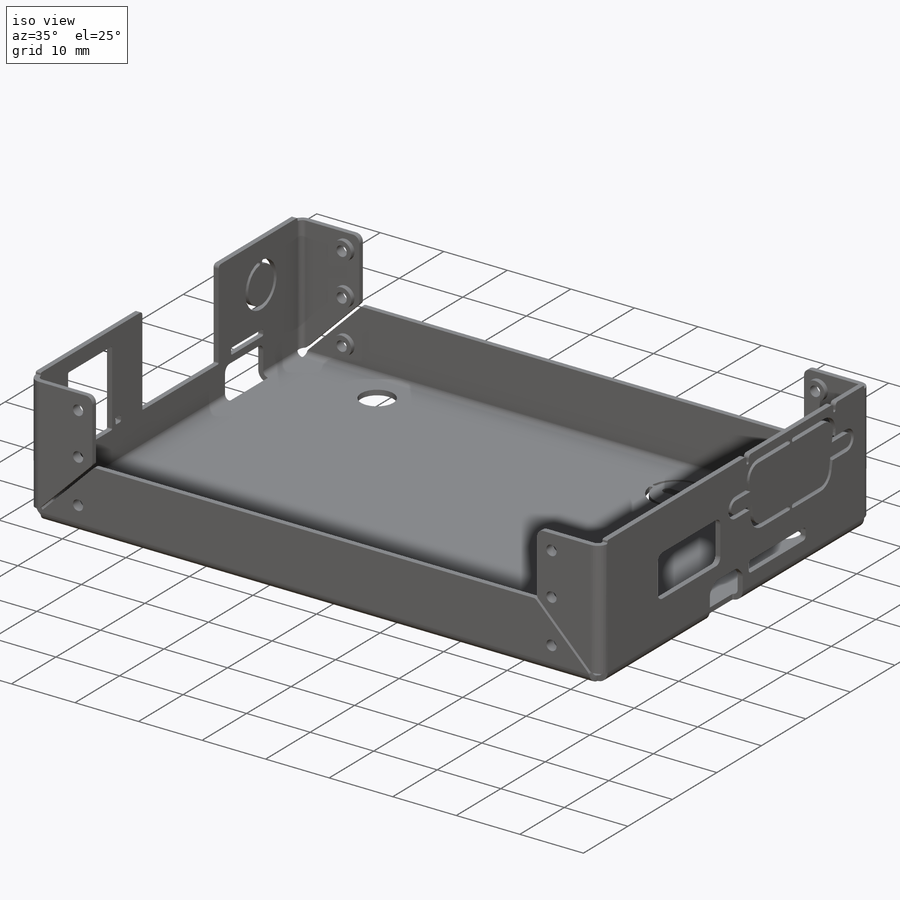
[diagram: iso view]
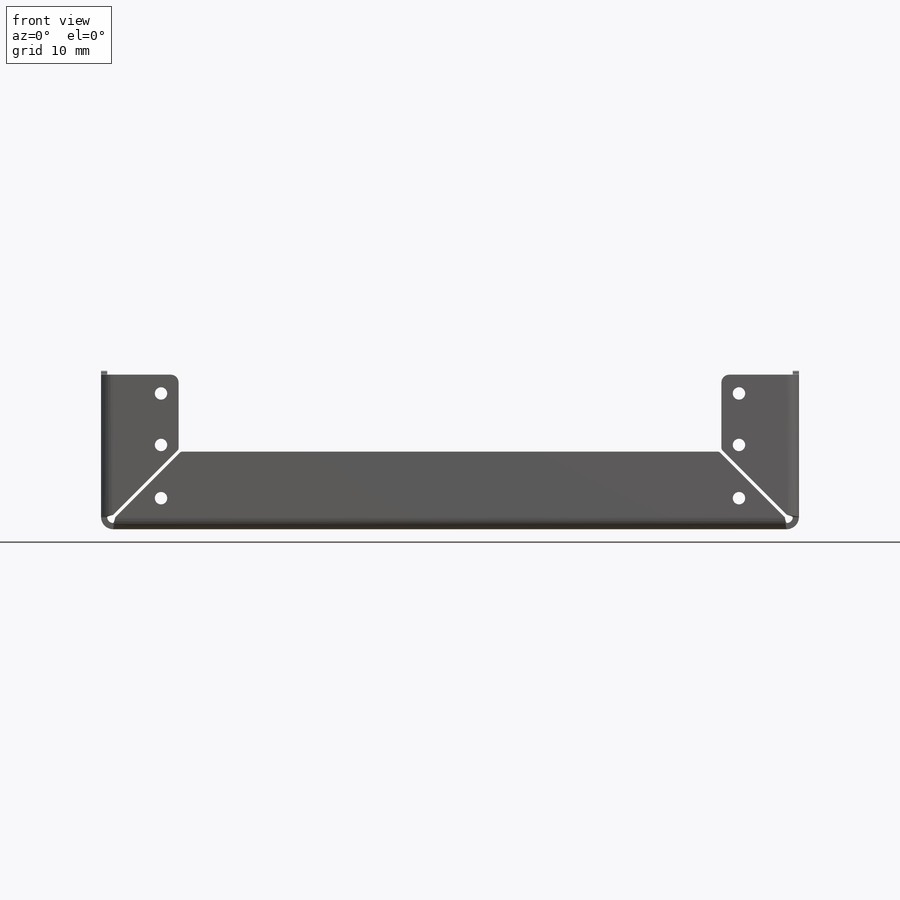
[diagram: front view]
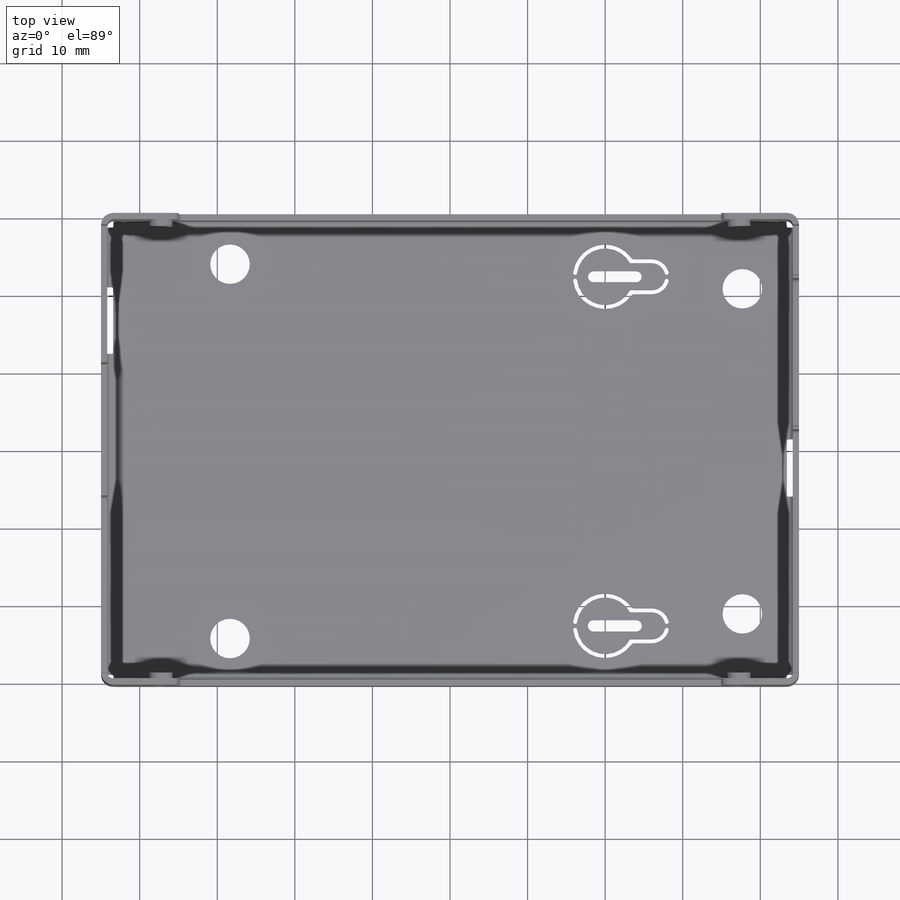
[diagram: top view]
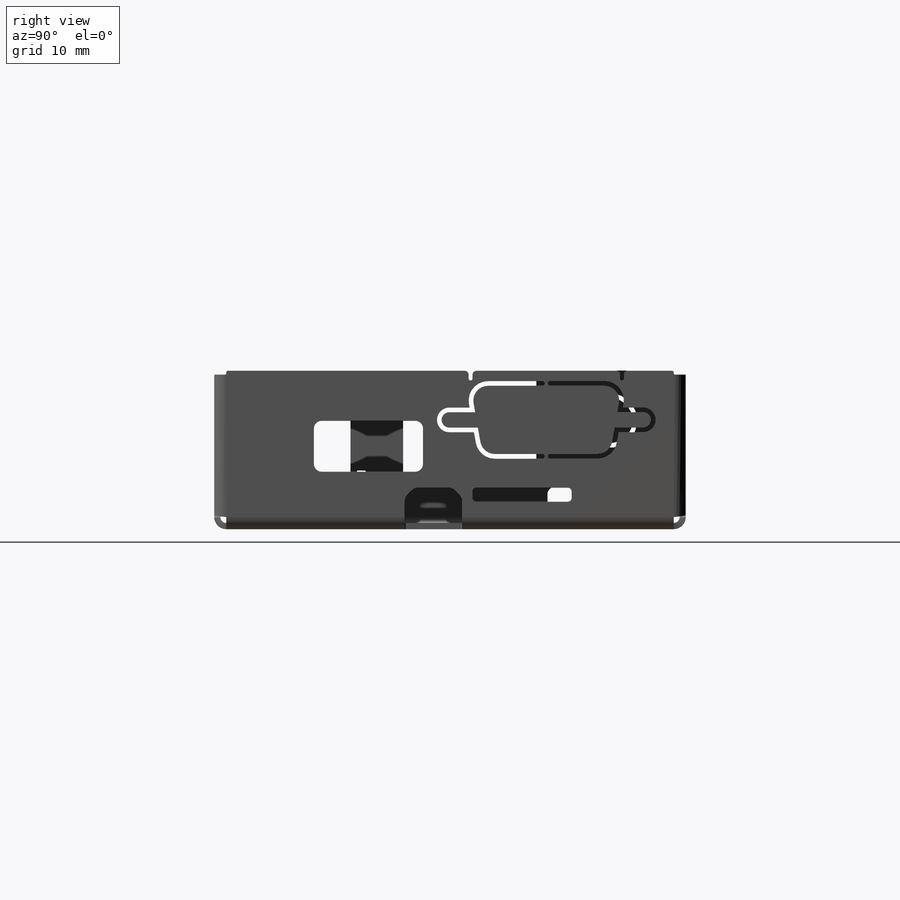
[diagram: right view]
SOLIDWORKS PART (.sldprt)
format: sldprt  version: not decoded by parser v0  size: 2,024,960 bytes
history: native  units: mm
features: sketch x68, sheet_metal_op x30, hole x22, fillet x11, cut_extrude x8, extrude x3, material x1 + 122 further entries (+13 scaffold rows collapsed; 22 parser-record rows omitted)
feature tree (300):
  scaffold x13  (default folders/planes/origin — collapsed)
  material  "Material <not specified>"
  sketch  "Sketch1"  dims[c1.D1=60.79mm c1.D2=89.97mm c2.D1=~0.75946mm c2.D2=0.48 c2.D3=0.0mm c2.D6=500.0mm]
  sheet_metal_op  "Base-Flange1"
  sketch  "Sketch14"
  sketch  "Sketch15"  dims[D1=~0.75946mm D4=90.0deg D5=1.0 D8=0.4mm D9=0.4mm]
  sheet_metal_op  "EdgeBend2"  Edge-Flange2=0
  sketch  "Sketch32"  dims[D1=10.0mm]
  sketch  "Sketch33"
  sketch  "Sketch34"
  sketch  "Sketch35"
  sketch  "Sketch36"
  sketch  "Sketch37"
  sheet_metal_op  "EdgeBend5"
  sheet_metal_op  "EdgeBend6"
  sheet_metal_op  "EdgeBend7"
  sheet_metal_op  "EdgeBend8"
  sheet_metal_op  "EdgeBend9"
  sheet_metal_op  "EdgeBend10"
  sketch  "Sketch40"  dims[c1.D1=5.1mm c1.D3=5.1mm c1.D2=66.04mm c2.D3=~29.019283mm c2.D4=48.26mm c2.D5=41.91mm c3.D3=16.63mm]
  cut_extrude  "Cut-Extrude1"  [1 undecoded]
  fillet  "Fillet2"  Radius=0.5mm
  sketch  "Sketch43"  dims[c1.D19=0.25mm c1.D20=0.25mm c1.D23=7.0mm c1.D21=3.5mm c1.D1=2.54mm c1.D2=~17.772915mm c1.D3=~13.337477mm c1.D4=~12.102699mm c1.D5=9.9mm c1.D6=11.9mm c1.D7=17.16mm c1.D8=~12.419476mm c1.D9=~16.848474mm c1.D10=~7.374035mm c1.D11=8.6mm c2.D3=6.37mm c2.D8=~6.574035mm c2.D12=1.0mm c2.D13=1.24mm c2.D14=11.74mm c2.D11=4.3mm c2.D17=2.94mm c2.D15=~5.474035mm c3.D17=7.24mm c3.D18=1.0mm c3.D21=0.6mm c3.D22=1.0mm c4.D21=0.6mm c4.D22=1.0mm c4.D24=14.0mm c4.D25=9.76mm c4.D26=1.1mm c4.D10=1.1mm c4.D14=19.58mm c4.D15=1.15mm c4.D16=1.36mm]
  cut_extrude  "Back_I/O"  [1 undecoded]
  sketch  "Sketch46"  dims[c1.D1=~7.382969mm c1.D2=~1.933824mm c1.D3=~3.409258mm c1.D4=~2.159258mm c1.D5=~4.882969mm c2.D5=225.0deg c2.D6=~2.152081mm c2.D7=~10.69229mm c2.D8=~6.558853mm c2.D9=~14.070148mm c2.D10=~10.509349mm]
  cut_extrude  "Cut-Extrude3"  [1 undecoded]
  hole  "M2x0.4 Tapped Hole1"  Diameter=1.6mm Depth=60.79mm
  sketch  "Sketch48"  dims[c1.D1=74.5mm c1.D2=~5.544743mm c1.D3=4.0mm c1.D4=~17.509022mm c2.D2=17.5mm c2.D4=10.86mm c3.D2=2.92mm]
  sketch  "Sketch47"  dims[hole-wizard template sketch: 59 standard entries collapsed; hole parameters kept: c18.Thread Major Dia.=1.6mm c18.Thru Tap Drill Depth=60.79mm]
  sketch  "Sketch51"  dims[D1=3.0mm]
  extrude  "Boss-Extrude1"  Depth=0.75mm
  sketch  "Sketch54"  dims[D1=3.0mm]
  extrude  "Boss-Extrude2"  Depth=0.75mm
  fillet  "Fillet4"  Radius=1mm
  sketch  "Sketch60"
  cut_extrude  "Cut-Extrude4"  [1 undecoded]
  fillet  "Fillet5"  Radius=0.2mm
  fillet  "Fillet7"  Radius=0.2mm
  fillet  "Fillet8"  Radius=0.5mm
  sketch  "Sketch64"  dims[c1.D3=2.5mm c1.D6=2.5mm c1.D5=2.5mm c1.D8=1.59mm c1.D13=2.5mm c1.D14=2.5mm c1.D1=24.9936mm c1.D2=3.18mm c1.D4=4.87mm c2.D5=10.0mm c2.D6=20.0mm c2.D7=15.0mm c3.D7=80.0deg c3.D8=15.0mm c4.D8=80.0deg c4.D9=45.0mm c4.D10=~29.307231mm c5.D9=~14.086948mm c5.D10=~12.405735mm c5.D4=~6.333052mm c5.D5=~5.077133mm c6.D5=100.0deg c6.D7=5.0mm c6.D8=~4.492465mm c6.D12=0.91mm c6.D13=5.0mm c7.D12=~20.552012mm c7.D13=2.5mm c7.D9=~1.333052mm c7.D4=~14.086948mm c7.D11=1.0mm c8.D12=~0.869756mm c8.D8=~5.492465mm c9.D12=~5.077133mm c10.D12=100.0deg c10.D14=15.0mm c10.D9=8.75mm c10.D11=8.75mm c11.D9=0.5mm]
  cut_extrude  "Cut-Extrude6"  [1 undecoded]
  sketch  "Sketch67"  dims[c1.D5=0.6mm c1.D2=0.99mm c1.D13=1.9mm c1.D14=0.99mm c1.D15=1.9mm c1.D16=1.9mm c1.D17=1.9mm c2.D2=1.0mm c2.D3=0.5mm c2.D4=0.5mm c2.D5=1.0mm c3.D2=~6.333052mm c3.D1=~6.333052mm c3.D3=0.99mm c3.D4=1.98mm c3.D5=24.9936mm c3.D6=4.4mm c3.D7=8.8mm c3.D8=1.98mm c3.D9=~2.499999mm c3.D10=5.0mm c3.D11=19.9968mm c3.D12=~29.486065mm c3.D18=~1.180069mm c4.D18=~100.000005deg c4.D19=~1.839931mm c5.D19=~100.000007deg c5.D20=~3.682871mm c5.D21=~3.333743mm c5.D22=~23.60763mm c5.D23=~1.868315mm c6.D23=100.0deg c6.D24=~3.333743mm c7.D24=80.0deg c7.D25=~1.198273mm c7.D2=0.5mm c7.D3=1.0mm c7.D1=0.6mm c8.D2=0.25mm c8.D3=0.25mm c9.D2=0.25mm c9.D3=0.25mm c9.D1=0.6mm]
  extrude  "Boss-Extrude3"  [1 undecoded]
  sketch  "Sketch71"  dims[c1.D1=8.3mm c1.D7=1.0mm c1.D8=1.0mm c2.D7=1.0mm c2.D8=1.0mm c2.D10=0.7mm c2.D2=45.0mm c2.D3=4.5mm c2.D4=6.0mm c2.D5=20.0mm c3.D8=4.0mm c3.D9=1.5mm c3.D11=4.0mm c3.D12=1.5mm c3.D13=0.5mm c3.D14=0.5mm c3.D15=~0.775426mm c4.D14=0.5mm c4.D6=0.5mm c4.D7=0.5mm]
  cut_extrude  "Cut-Extrude7"  [1 undecoded]
  sketch  "Sketch74"  dims[D1=12.8mm D2=~1.797507mm D3=~4.446379mm D4=~9.285114mm]
  cut_extrude  "Cut-Extrude8"  [1 undecoded]
  fillet  "Fillet9"  Radius=0.5mm
  fillet  "Fillet10"  Radius=0.5mm
  sketch  "Sketch75"  dims[D1=0.5mm]
  cut_extrude  "Cut-Extrude9"  [1 undecoded]
  fillet  "Fillet12"  Radius=0.2mm
  fillet  "Fillet13"  Radius=1mm
  fillet  "Fillet16"  Radius=1mm
  fillet  "Fillet17"  Radius=0.5mm
  sketch  "Bend-Lines1"
  sketch  "Bounding-Box1"
  sheet_metal_op  "Sheet-Metal(1)"
  "Flat-Pattern(1)"
  sketch  "Bend-Lines2"
  sketch  "Bounding-Box2"
  parser-record x22  (decoder bookkeeping rows leaked as tree rows — omitted from the tree; the rows remain in map.json)
  hole  "Sheet-Metal(2)"  Diameter=0.75946mm
  sheet_metal_op  "Flat-Pattern(1)"
  sketch  "Bend-Lines3"
  sketch  "Bounding-Box3"
  "Flatten-<EdgeBend2>1"
  hole  "Sheet-Metal(3)"  Diameter=0.75946mm
  sheet_metal_op  "Flat-Pattern(1)"
  sketch  "Bend-Lines4"
  sketch  "Bounding-Box4"
  "Flatten-<EdgeBend1>2"
  "Flatten-<EdgeBend2>2"
  "Flatten-<EdgeBend5>1"
  "Flatten-<EdgeBend6>1"
  "Flatten-<EdgeBend7>1"
  "Flatten-<EdgeBend8>1"
  "Flatten-<EdgeBend9>1"
  "Flatten-<EdgeBend10>1"
  hole  "Sheet-Metal(4)"  Diameter=0.75946mm
  sheet_metal_op  "Flat-Pattern(1)"
  sketch  "Bend-Lines5"
  sketch  "Bounding-Box5"
  "Flatten-<EdgeBend1>3"
  "Flatten-<EdgeBend2>3"
  "Flatten-<EdgeBend5>2"
  "Flatten-<EdgeBend6>2"
  "Flatten-<EdgeBend7>2"
  "Flatten-<EdgeBend8>2"
  "Flatten-<EdgeBend9>2"
  "Flatten-<EdgeBend10>2"
  hole  "Sheet-Metal(5)"  Diameter=0.75946mm
  sheet_metal_op  "Flat-Pattern(1)"
  sketch  "Bend-Lines6"
  sketch  "Bounding-Box6"
  "Flatten-<EdgeBend1>4"
  "Flatten-<EdgeBend2>4"
  "Flatten-<EdgeBend5>3"
  "Flatten-<EdgeBend6>3"
  "Flatten-<EdgeBend7>3"
  "Flatten-<EdgeBend8>3"
  "Flatten-<EdgeBend9>3"
  "Flatten-<EdgeBend10>3"
  hole  "Sheet-Metal(6)"  Diameter=0.75946mm
  sheet_metal_op  "Flat-Pattern(1)"
  sketch  "Bend-Lines7"
  sketch  "Bounding-Box7"
  "Flatten-<EdgeBend1>5"
  "Flatten-<EdgeBend2>5"
  "Flatten-<EdgeBend5>4"
  "Flatten-<EdgeBend6>4"
  "Flatten-<EdgeBend7>4"
  "Flatten-<EdgeBend8>4"
  "Flatten-<EdgeBend9>4"
  "Flatten-<EdgeBend10>4"
  hole  "Sheet-Metal(7)"  Diameter=0.75946mm
  sheet_metal_op  "Flat-Pattern(1)"
  sketch  "Bend-Lines8"
  sketch  "Bounding-Box8"
  "Flatten-<EdgeBend1>6"
  "Flatten-<EdgeBend2>6"
  "Flatten-<EdgeBend5>5"
  "Flatten-<EdgeBend6>5"
  "Flatten-<EdgeBend7>5"
  "Flatten-<EdgeBend8>5"
  "Flatten-<EdgeBend9>5"
  "Flatten-<EdgeBend10>5"
  hole  "Sheet-Metal(8)"  Diameter=0.75946mm
  sheet_metal_op  "Flat-Pattern(1)"
  sketch  "Bend-Lines9"
  sketch  "Bounding-Box9"
  "Flatten-<EdgeBend1>7"
  "Flatten-<EdgeBend2>7"
  "Flatten-<EdgeBend5>6"
  "Flatten-<EdgeBend6>6"
  "Flatten-<EdgeBend7>6"
  "Flatten-<EdgeBend8>6"
  "Flatten-<EdgeBend9>6"
  "Flatten-<EdgeBend10>6"
  hole  "Sheet-Metal(9)"  Diameter=0.75946mm
  sheet_metal_op  "Flat-Pattern(1)"
  sketch  "Bend-Lines10"
  sketch  "Bounding-Box10"
  "Flatten-<EdgeBend1>8"
  "Flatten-<EdgeBend2>8"
  "Flatten-<EdgeBend5>7"
  "Flatten-<EdgeBend6>7"
  "Flatten-<EdgeBend7>7"
  "Flatten-<EdgeBend8>7"
  "Flatten-<EdgeBend9>7"
  "Flatten-<EdgeBend10>7"
  hole  "Sheet-Metal(10)"  Diameter=0.75946mm
  sheet_metal_op  "Flat-Pattern(1)"
  sketch  "Bend-Lines11"
  sketch  "Bounding-Box11"
  "Flatten-<EdgeBend1>9"
  "Flatten-<EdgeBend2>9"
  "Flatten-<EdgeBend5>8"
  "Flatten-<EdgeBend6>8"
  "Flatten-<EdgeBend7>8"
  "Flatten-<EdgeBend8>8"
  "Flatten-<EdgeBend9>8"
  "Flatten-<EdgeBend10>8"
  hole  "Sheet-Metal(12)"  Diameter=0.75946mm
  sheet_metal_op  "Flat-Pattern(1)"
  sketch  "Bend-Lines13"
  sketch  "Bounding-Box13"
  "Flatten-<EdgeBend1>11"
  "Flatten-<EdgeBend2>11"
  "Flatten-<EdgeBend5>10"
  "Flatten-<EdgeBend6>10"
  "Flatten-<EdgeBend7>10"
  "Flatten-<EdgeBend8>10"
  "Flatten-<EdgeBend9>10"
  "Flatten-<EdgeBend10>10"
  hole  "Sheet-Metal(13)"  Diameter=0.75946mm
  sheet_metal_op  "Flat-Pattern(1)"
  sketch  "Bend-Lines14"
  sketch  "Bounding-Box14"
  "Flatten-<EdgeBend1>12"
  "Flatten-<EdgeBend2>12"
  "Flatten-<EdgeBend5>11"
  "Flatten-<EdgeBend6>11"
  "Flatten-<EdgeBend7>11"
  "Flatten-<EdgeBend8>11"
  "Flatten-<EdgeBend9>11"
  "Flatten-<EdgeBend10>11"
  hole  "Sheet-Metal(14)"  Diameter=0.75946mm
  sheet_metal_op  "Flat-Pattern(1)"
  sketch  "Bend-Lines15"
  sketch  "Bounding-Box15"
  "Flatten-<EdgeBend1>13"
  "Flatten-<EdgeBend2>13"
  "Flatten-<EdgeBend5>12"
  "Flatten-<EdgeBend6>12"
  "Flatten-<EdgeBend7>12"
  "Flatten-<EdgeBend8>12"
  "Flatten-<EdgeBend9>12"
  "Flatten-<EdgeBend10>12"
  hole  "Sheet-Metal(15)"  Diameter=0.75946mm
  sheet_metal_op  "Flat-Pattern(1)"
  sketch  "Bend-Lines16"
  sketch  "Bounding-Box16"
  "Flatten-<EdgeBend1>14"
  "Flatten-<EdgeBend2>14"
  "Flatten-<EdgeBend5>13"
  "Flatten-<EdgeBend6>13"
  "Flatten-<EdgeBend7>13"
  "Flatten-<EdgeBend8>13"
  "Flatten-<EdgeBend9>13"
  "Flatten-<EdgeBend10>13"
  hole  "Sheet-Metal(24)"  Diameter=0.75946mm
  sheet_metal_op  "Flat-Pattern(1)"
  sketch  "Bend-Lines17"
  sketch  "Bounding-Box17"
  "Flatten-<EdgeBend10>14"
  "Flatten-<EdgeBend9>14"
  "Flatten-<EdgeBend8>14"
  "Flatten-<EdgeBend7>14"
  "Flatten-<EdgeBend6>14"
  "Flatten-<EdgeBend5>14"
  "Flatten-<EdgeBend2>15"
  "Flatten-<EdgeBend1>15"
  hole  "Sheet-Metal(25)"  Diameter=0.75946mm
  sheet_metal_op  "Flat-Pattern(25)"
  sketch  "Bend-Lines18"
  sketch  "Bounding-Box18"
  hole  "Sheet-Metal(26)"  Diameter=0.75946mm
  sheet_metal_op  "Flat-Pattern(26)"
  sketch  "Bend-Lines19"
  sketch  "Bounding-Box19"
  "Flatten-<EdgeBend6>15"
  hole  "Sheet-Metal(27)"  Diameter=0.75946mm
  sheet_metal_op  "Flat-Pattern(27)"
  sketch  "Bend-Lines20"
  sketch  "Bounding-Box20"
  "Flatten-<EdgeBend9>15"
  hole  "Sheet-Metal(28)"  Diameter=0.75946mm
  sheet_metal_op  "Flat-Pattern(28)"
  sketch  "Bend-Lines21"
  sketch  "Bounding-Box21"
  "Flatten-<EdgeBend2>16"
  "Flatten-<EdgeBend7>15"
  "Flatten-<EdgeBend10>15"
  hole  "Sheet-Metal(29)"  Diameter=0.75946mm
  sheet_metal_op  "Flat-Pattern(29)"
  sketch  "Bend-Lines22"
  sketch  "Bounding-Box22"
  "Flatten-<EdgeBend1>16"
  "Flatten-<EdgeBend5>15"
  "Flatten-<EdgeBend8>15"
  hole  "Sheet-Metal(30)"  Diameter=0.75946mm
  sheet_metal_op  "Flat-Pattern(1)"
  sketch  "Bend-Lines23"
  sketch  "Bounding-Box23"
  "Flatten-<EdgeBend1>17"
  "Flatten-<EdgeBend2>17"
  "Flatten-<EdgeBend5>16"
  "Flatten-<EdgeBend6>16"
  "Flatten-<EdgeBend7>16"
  "Flatten-<EdgeBend8>16"
  "Flatten-<EdgeBend9>16"
  "Flatten-<EdgeBend10>16"
  hole  "Sheet-Metal(31)"  Diameter=0.75946mm
  sheet_metal_op  "Flat-Pattern(31)"
  sketch  "Bend-Lines24"
  sketch  "Bounding-Box24"
decode coverage: 51 of 142 modeling features carry decoded parameters; 122 rows unclassified (native names shown)
note: ~ marks probable driven/reference dimensions
note: 9 parameter values undecoded
summary: no parameter record found for 9 features
note: suppression state not decoded; provenance and decode notes live in map.json
